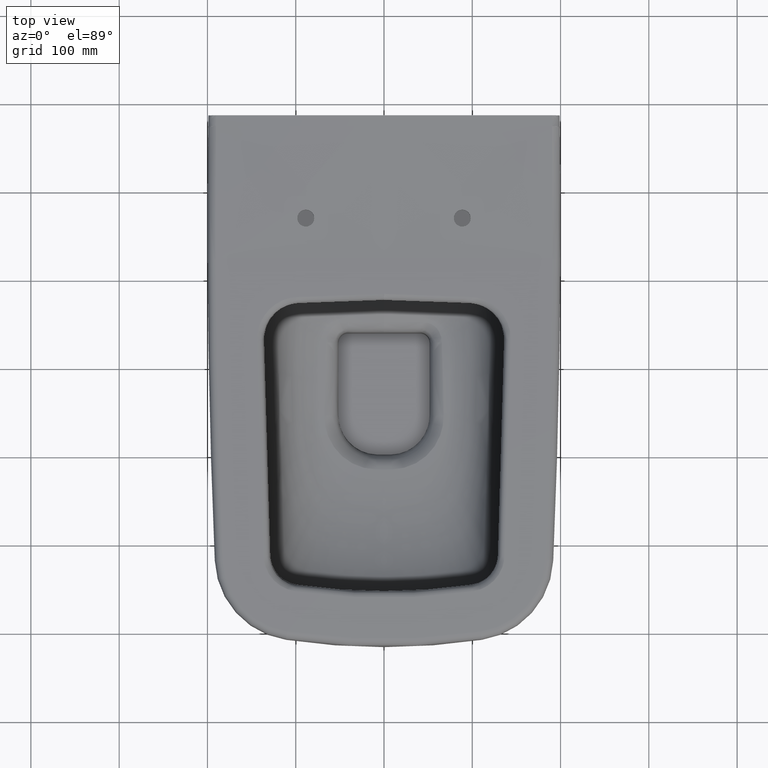
[diagram: clean part render]
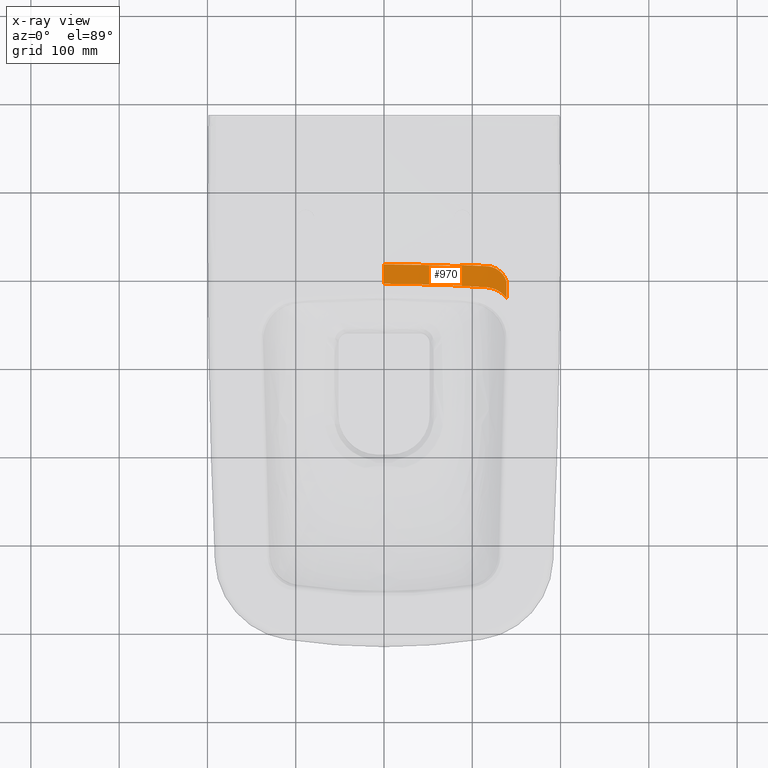
[diagram: x-ray — body ghosted, one internal face saturated and labeled with its STEP entity id]
A machine part, top view, then the same camera in x-ray: the body is ghosted and one INTERNAL B-rep face — a face not visible from any outside direction — is saturated and labeled: STEP entity #970.
In plain terms, the highlighted face is a freeform B-spline surface patch.
Its self-contained STEP definition (entity closure, byte-faithful):
#475=FACE_OUTER_BOUND('',#1289,.T.);
#539=B_SPLINE_SURFACE_WITH_KNOTS('',3,3,((#73798,#73799,#73800,#73801,#73802,
#73803,#73804,#73805,#73806,#73807,#73808,#73809,#73810),(#73811,#73812,
#73813,#73814,#73815,#73816,#73817,#73818,#73819,#73820,#73821,#73822,#73823),
(#73824,#73825,#73826,#73827,#73828,#73829,#73830,#73831,#73832,#73833,
#73834,#73835,#73836),(#73837,#73838,#73839,#73840,#73841,#73842,#73843,
#73844,#73845,#73846,#73847,#73848,#73849)),.UNSPECIFIED.,.F.,.F.,.F.,(4,
4),(4,3,3,3,4),(0.,1.),(0.,0.0795201954493503,0.950882290564406,0.975439942280452,
1.),.UNSPECIFIED.);
#970=ADVANCED_FACE('',(#475),#539,.F.);
#1289=EDGE_LOOP('',(#2519,#2520,#2521,#2522,#2523,#2524,#2525,#2526,#2527,
#2528,#2529,#2530,#2531));
#2519=ORIENTED_EDGE('',*,*,#3653,.F.);
#2520=ORIENTED_EDGE('',*,*,#3658,.F.);
#2521=ORIENTED_EDGE('',*,*,#3657,.T.);
#2522=ORIENTED_EDGE('',*,*,#3656,.T.);
#2523=ORIENTED_EDGE('',*,*,#3655,.T.);
#2524=ORIENTED_EDGE('',*,*,#3682,.T.);
#2525=ORIENTED_EDGE('',*,*,#3683,.F.);
#2526=ORIENTED_EDGE('',*,*,#3684,.F.);
#2527=ORIENTED_EDGE('',*,*,#3385,.T.);
#2528=ORIENTED_EDGE('',*,*,#3685,.T.);
#2529=ORIENTED_EDGE('',*,*,#3647,.T.);
#2530=ORIENTED_EDGE('',*,*,#3484,.F.);
#2531=ORIENTED_EDGE('',*,*,#3468,.F.);
#2857=VERTEX_POINT('',#37587);
#2858=VERTEX_POINT('',#37592);
#2909=VERTEX_POINT('',#45178);
#2910=VERTEX_POINT('',#45185);
#2921=VERTEX_POINT('',#52158);
#3009=VERTEX_POINT('',#72334);
#3012=VERTEX_POINT('',#72379);
#3013=VERTEX_POINT('',#72436);
#3014=VERTEX_POINT('',#72441);
#3015=VERTEX_POINT('',#72446);
#3016=VERTEX_POINT('',#72451);
#3029=VERTEX_POINT('',#72648);
#3034=VERTEX_POINT('',#73771);
#3385=EDGE_CURVE('',#2858,#2857,#3950,.T.);
#3468=EDGE_CURVE('',#2909,#2910,#4018,.T.);
#3484=EDGE_CURVE('',#2910,#2921,#4025,.T.);
#3647=EDGE_CURVE('',#3009,#2921,#4122,.T.);
#3653=EDGE_CURVE('',#3012,#2909,#4128,.T.);
#3655=EDGE_CURVE('',#3014,#3013,#4130,.T.);
#3656=EDGE_CURVE('',#3015,#3014,#4131,.T.);
#3657=EDGE_CURVE('',#3016,#3015,#4132,.T.);
#3658=EDGE_CURVE('',#3016,#3012,#4133,.T.);
#3682=EDGE_CURVE('',#3013,#3029,#4156,.T.);
#3683=EDGE_CURVE('',#3034,#3029,#4157,.T.);
#3684=EDGE_CURVE('',#2858,#3034,#4158,.T.);
#3685=EDGE_CURVE('',#2857,#3009,#4159,.T.);
#3950=B_SPLINE_CURVE_WITH_KNOTS('',3,(#37588,#37589,#37590,#37591),
 .UNSPECIFIED.,.F.,.F.,(4,4),(0.,1.),.UNSPECIFIED.);
#4018=B_SPLINE_CURVE_WITH_KNOTS('',3,(#45179,#45180,#45181,#45182,#45183,
#45184),.UNSPECIFIED.,.F.,.F.,(4,2,4),(0.,0.5,1.),.UNSPECIFIED.);
#4025=B_SPLINE_CURVE_WITH_KNOTS('',3,(#52150,#52151,#52152,#52153,#52154,
#52155,#52156,#52157),.UNSPECIFIED.,.F.,.F.,(4,2,2,4),(0.,0.25,0.500000000000001,
1.),.UNSPECIFIED.);
#4122=B_SPLINE_CURVE_WITH_KNOTS('',3,(#72327,#72328,#72329,#72330,#72331,
#72332,#72333),.UNSPECIFIED.,.F.,.F.,(4,3,4),(0.,0.544623235989819,1.),
 .UNSPECIFIED.);
#4128=B_SPLINE_CURVE_WITH_KNOTS('',3,(#72396,#72397,#72398,#72399,#72400,
#72401,#72402,#72403,#72404,#72405,#72406,#72407,#72408,#72409,#72410,#72411,
#72412,#72413),.UNSPECIFIED.,.F.,.F.,(4,3,2,2,2,2,3,4),(0.,0.115384615384615,
0.376788875537149,0.626339936463389,0.748197371512142,0.875890997392022,
0.884615384615385,1.),.UNSPECIFIED.);
#4130=B_SPLINE_CURVE_WITH_KNOTS('',3,(#72437,#72438,#72439,#72440),
 .UNSPECIFIED.,.F.,.F.,(4,4),(0.,1.),.UNSPECIFIED.);
#4131=B_SPLINE_CURVE_WITH_KNOTS('',3,(#72442,#72443,#72444,#72445),
 .UNSPECIFIED.,.F.,.F.,(4,4),(0.,1.),.UNSPECIFIED.);
#4132=B_SPLINE_CURVE_WITH_KNOTS('',3,(#72447,#72448,#72449,#72450),
 .UNSPECIFIED.,.F.,.F.,(4,4),(0.,1.),.UNSPECIFIED.);
#4133=B_SPLINE_CURVE_WITH_KNOTS('',3,(#72452,#72453,#72454,#72455,#72456,
#72457),.UNSPECIFIED.,.F.,.F.,(4,2,4),(0.,0.5,1.),.UNSPECIFIED.);
#4156=B_SPLINE_CURVE_WITH_KNOTS('',3,(#73763,#73764,#73765,#73766),
 .UNSPECIFIED.,.F.,.F.,(4,4),(0.,1.),.UNSPECIFIED.);
#4157=B_SPLINE_CURVE_WITH_KNOTS('',3,(#73767,#73768,#73769,#73770),
 .UNSPECIFIED.,.F.,.F.,(4,4),(0.,1.),.UNSPECIFIED.);
#4158=B_SPLINE_CURVE_WITH_KNOTS('',3,(#73772,#73773,#73774,#73775,#73776,
#73777,#73778,#73779,#73780,#73781,#73782,#73783,#73784,#73785),
 .UNSPECIFIED.,.F.,.F.,(4,2,2,2,2,2,4),(0.,0.125,0.25,0.375,0.5,0.75,1.),
 .UNSPECIFIED.);
#4159=B_SPLINE_CURVE_WITH_KNOTS('',3,(#73786,#73787,#73788,#73789,#73790,
#73791,#73792,#73793,#73794,#73795,#73796,#73797),.UNSPECIFIED.,.F.,.F.,
(4,2,2,2,2,4),(0.,0.25,0.375,0.5,0.75,1.),.UNSPECIFIED.);
#37587=CARTESIAN_POINT('',(3.05745012640912E-13,-186.514554702741,-91.601619009732));
#37588=CARTESIAN_POINT('',(7.60565818266914E-9,-208.541681056613,-91.6014102561195));
#37589=CARTESIAN_POINT('',(1.08923659929537E-7,-201.199386488007,-91.6014533231968));
#37590=CARTESIAN_POINT('',(-1.48261762725828E-8,-193.857008543113,-91.6015583368934));
#37591=CARTESIAN_POINT('',(-7.35755530344321E-7,-186.514554709675,-91.6018163508785));
#37592=CARTESIAN_POINT('',(9.77147795864402E-15,-208.54168105655,-91.6013996321728));
#45178=CARTESIAN_POINT('',(138.855833224708,-206.384947195497,-78.0539105498396));
#45179=CARTESIAN_POINT('',(138.855831952715,-206.384941360903,-78.0539077672393));
#45180=CARTESIAN_POINT('',(137.574494762444,-201.867269085775,-78.3063652590014));
#45181=CARTESIAN_POINT('',(134.861940697237,-197.734442393895,-78.8382464658453));
#45182=CARTESIAN_POINT('',(127.786082454967,-191.669436855756,-80.1533946114858));
#45183=CARTESIAN_POINT('',(123.406476933826,-189.652256682405,-80.9367099305942));
#45184=CARTESIAN_POINT('',(118.796116428892,-188.852986700068,-81.7086337604499));
#45185=CARTESIAN_POINT('',(118.796194968392,-188.853000315617,-81.708620608272));
#52150=CARTESIAN_POINT('',(118.796221148171,-188.853004854822,-81.7086162270393));
#52151=CARTESIAN_POINT('',(116.095536466212,-188.384792674911,-82.1607988205724));
#52152=CARTESIAN_POINT('',(113.368498253791,-188.407356922035,-82.6012540987553));
#52153=CARTESIAN_POINT('',(107.923952244961,-188.166780107584,-83.4483158475305));
#52154=CARTESIAN_POINT('',(105.200179209202,-188.031334271349,-83.8560125088839));
#52155=CARTESIAN_POINT('',(97.0211644202555,-187.644916892541,-85.0322479153249));
#52156=CARTESIAN_POINT('',(91.5580488764104,-187.417527036438,-85.7539741338108));
#52157=CARTESIAN_POINT('',(86.0819738554707,-187.271517346723,-86.4136334515198));
#52158=CARTESIAN_POINT('',(86.0819738554706,-187.271517346723,-86.4136334515197));
#72327=CARTESIAN_POINT('',(86.0819718777439,-188.745111600823,-86.4133765805592));
#72328=CARTESIAN_POINT('',(86.0819722144861,-188.477593710377,-86.4134229583411));
#72329=CARTESIAN_POINT('',(86.0819725632104,-188.210075819956,-86.4134694730811));
#72330=CARTESIAN_POINT('',(86.0819729241801,-187.942557929559,-86.4135161277839));
#72331=CARTESIAN_POINT('',(86.0819732259983,-187.718877735263,-86.4135551372609));
#72332=CARTESIAN_POINT('',(86.0819735363773,-187.495197540984,-86.4135942445876));
#72333=CARTESIAN_POINT('',(86.0819738554706,-187.271517346723,-86.4136334515197));
#72334=CARTESIAN_POINT('',(86.0819718777439,-188.745111600823,-86.4133765805592));
#72379=CARTESIAN_POINT('',(138.856866862904,-225.157920236243,-78.0534538279173));
#72396=CARTESIAN_POINT('',(138.857150737795,-230.454755802057,-78.0533271602451));
#72397=CARTESIAN_POINT('',(138.85705471766,-228.689143946868,-78.0533696574915));
#72398=CARTESIAN_POINT('',(138.856958697525,-226.923532091679,-78.0534121547379));
#72399=CARTESIAN_POINT('',(138.85686267739,-225.15792023649,-78.0534546519843));
#72400=CARTESIAN_POINT('',(138.85664514343,-221.157920243564,-78.0535509296485));
#72401=CARTESIAN_POINT('',(138.856428630574,-217.15792025057,-78.053646725944));
#72402=CARTESIAN_POINT('',(138.856000763293,-209.339297556893,-78.053836339908));
#72403=CARTESIAN_POINT('',(138.855786200886,-205.52067485641,-78.0539313901294));
#72404=CARTESIAN_POINT('',(138.855458538557,-199.837393413031,-78.0540764957133));
#72405=CARTESIAN_POINT('',(138.855349699854,-197.972734669835,-78.0541246876384));
#72406=CARTESIAN_POINT('',(138.855124076611,-194.154111970083,-78.0542245754494));
#72407=CARTESIAN_POINT('',(138.855007161169,-192.200148013534,-78.0542763286099));
#72408=CARTESIAN_POINT('',(138.854880691557,-190.112683750722,-78.0543323033656));
#72409=CARTESIAN_POINT('',(138.854872589283,-189.979183444353,-78.0543358880408));
#72410=CARTESIAN_POINT('',(138.854864477994,-189.845683137984,-78.0543394742339));
#72411=CARTESIAN_POINT('',(138.854757201925,-188.080071283564,-78.0543869035263));
#72412=CARTESIAN_POINT('',(138.854649925857,-186.314459429145,-78.0544343328186));
#72413=CARTESIAN_POINT('',(138.854542649788,-184.548847574725,-78.054481762111));
#72436=CARTESIAN_POINT('',(113.100595749314,-212.513979386244,-82.6389157685539));
#72437=CARTESIAN_POINT('',(116.282518939281,-212.707678095105,-82.1221443014002));
#72438=CARTESIAN_POINT('',(115.222382856851,-212.642092499024,-82.2956709437139));
#72439=CARTESIAN_POINT('',(114.161569698845,-212.577455804845,-82.4668596283504));
#72440=CARTESIAN_POINT('',(113.100098063221,-212.513769515379,-82.6357066763619));
#72441=CARTESIAN_POINT('',(116.282962545997,-212.707347789153,-82.1247314390714));
#72442=CARTESIAN_POINT('',(116.446492257351,-212.717674219645,-82.0952850845775));
#72443=CARTESIAN_POINT('',(116.391845114722,-212.714192591109,-82.1042429402836));
#72444=CARTESIAN_POINT('',(116.337196170596,-212.710713478515,-82.1131945834203));
#72445=CARTESIAN_POINT('',(116.282545427521,-212.70723688207,-82.1221400134838));
#72446=CARTESIAN_POINT('',(116.44691178445,-212.717674500562,-82.097844576628));
#72447=CARTESIAN_POINT('',(117.006396869737,-212.760111112196,-82.0032760574067));
#72448=CARTESIAN_POINT('',(116.819783055237,-212.745936573704,-82.0340182010249));
#72449=CARTESIAN_POINT('',(116.633148150676,-212.731790940176,-82.0646878834437));
#72450=CARTESIAN_POINT('',(116.446492257351,-212.717674219645,-82.0952850845775));
#72451=CARTESIAN_POINT('',(117.00714484313,-212.755982280409,-82.0056751586943));
#72452=CARTESIAN_POINT('',(117.006802306362,-212.760111454649,-82.0057312328234));
#72453=CARTESIAN_POINT('',(121.333211821695,-213.128699849003,-81.2921869606002));
#72454=CARTESIAN_POINT('',(125.491427012429,-214.415696591906,-80.5644231389278));
#72455=CARTESIAN_POINT('',(133.046344836683,-218.694482233217,-79.1832179723447));
#72456=CARTESIAN_POINT('',(136.326265966494,-221.638838760023,-78.5517394276123));
#72457=CARTESIAN_POINT('',(138.856870865658,-225.157917180048,-78.0534530361256));
#72648=CARTESIAN_POINT('',(98.8683374164885,-211.647458473743,-84.7599174044614));
#73763=CARTESIAN_POINT('',(113.100073215782,-212.514188512027,-82.6357105797863));
#73764=CARTESIAN_POINT('',(107.792228205582,-212.192157586388,-83.4800234792781));
#73765=CARTESIAN_POINT('',(103.044593186879,-211.906284669448,-84.1747698758809));
#73766=CARTESIAN_POINT('',(98.8677901800666,-211.642570508659,-84.7537431566866));
#73767=CARTESIAN_POINT('',(76.4690393658786,-210.286172160349,-87.5025824470905));
#73768=CARTESIAN_POINT('',(83.9568689990493,-210.617280633851,-86.702048201947));
#73769=CARTESIAN_POINT('',(91.4164508575383,-211.18033130452,-85.786613082673));
#73770=CARTESIAN_POINT('',(98.8671861465843,-211.652302296102,-84.7538254803846));
#73771=CARTESIAN_POINT('',(76.4690393658786,-210.286172160349,-87.5025824470905));
#73772=CARTESIAN_POINT('',(4.46066734627931E-9,-208.541680929697,-91.6014102561213));
#73773=CARTESIAN_POINT('',(3.19511771575347,-208.462512003707,-91.6002670289014));
#73774=CARTESIAN_POINT('',(6.38669184565731,-208.611310953883,-91.5777080884974));
#73775=CARTESIAN_POINT('',(12.7692629474587,-208.864916687823,-91.4900182304761));
#73776=CARTESIAN_POINT('',(15.9606414119901,-208.940363303878,-91.4248717286509));
#73777=CARTESIAN_POINT('',(22.344176777847,-208.943167974284,-91.2520631164153));
#73778=CARTESIAN_POINT('',(25.536054954113,-208.891953384198,-91.1444009802248));
#73779=CARTESIAN_POINT('',(31.9172934046106,-208.895221544429,-90.8867417157208));
#73780=CARTESIAN_POINT('',(35.1067088010367,-208.94749057175,-90.7367478678754));
#73781=CARTESIAN_POINT('',(44.6714790959954,-209.227845943686,-90.2234121995413));
#73782=CARTESIAN_POINT('',(51.0372374007635,-209.537875151146,-89.7971432391796));
#73783=CARTESIAN_POINT('',(63.7635612318422,-209.902573831156,-88.7759951788469));
#73784=CARTESIAN_POINT('',(70.1225501103693,-210.005533247281,-88.1810944104189));
#73785=CARTESIAN_POINT('',(76.4690393658786,-210.286172160349,-87.5025824470906));
#73786=CARTESIAN_POINT('',(-1.91806031727886E-7,-186.514565043309,-91.6018163503528));
#73787=CARTESIAN_POINT('',(7.19221517780075,-186.689041143568,-91.599664375009));
#73788=CARTESIAN_POINT('',(14.3872605358754,-186.719445883458,-91.4888785147085));
#73789=CARTESIAN_POINT('',(25.1709661230279,-186.836716125117,-91.161193095915));
#73790=CARTESIAN_POINT('',(28.7649338447676,-186.853462626204,-91.0250314562587));
#73791=CARTESIAN_POINT('',(35.9504210211176,-186.936132526938,-90.699012511781));
#73792=CARTESIAN_POINT('',(39.5414865498955,-187.049083607907,-90.5091752840898));
#73793=CARTESIAN_POINT('',(50.311439882344,-187.337974396384,-89.8592553952512));
#73794=CARTESIAN_POINT('',(57.4842778268677,-187.54316057091,-89.3188856162221));
#73795=CARTESIAN_POINT('',(71.8017570301454,-188.073564617553,-88.0256797314426));
#73796=CARTESIAN_POINT('',(78.9510794766521,-188.313115785585,-87.2724151838169));
#73797=CARTESIAN_POINT('',(86.081971877744,-188.745111600823,-86.4133765805588));
#73798=CARTESIAN_POINT('',(-0.887325584280455,-223.8601596898,-91.6011822142633));
#73799=CARTESIAN_POINT('',(-0.88513001731869,-222.718975686603,-91.6011817805787));
#73800=CARTESIAN_POINT('',(-0.882934450356926,-221.577791683407,-91.6011813468942));
#73801=CARTESIAN_POINT('',(-0.880738883395161,-220.43660768021,-91.6011809132097));
#73802=CARTESIAN_POINT('',(-0.856680418536543,-207.931803355747,-91.6011761610049));
#73803=CARTESIAN_POINT('',(-0.832622057982656,-195.42705143177,-91.6012097006694));
#73804=CARTESIAN_POINT('',(-0.808565688855634,-182.922388887907,-91.6017309418971));
#73805=CARTESIAN_POINT('',(-0.807887706719521,-182.569969211517,-91.6017456320708));
#73806=CARTESIAN_POINT('',(-0.807209724583408,-182.217549535127,-91.6017603222445));
#73807=CARTESIAN_POINT('',(-0.806531742447295,-181.865129858737,-91.6017750124182));
#73808=CARTESIAN_POINT('',(-0.805853693886777,-181.512675654495,-91.6017897040312));
#73809=CARTESIAN_POINT('',(-0.80517564532626,-181.160221450253,-91.6018043956441));
#73810=CARTESIAN_POINT('',(-0.804497596765742,-180.80776724601,-91.6018190872571));
#73811=CARTESIAN_POINT('',(46.4770169848666,-223.607010204679,-91.6411070691549));
#73812=CARTESIAN_POINT('',(46.4792187359886,-222.484171377033,-91.6411066341174));
#73813=CARTESIAN_POINT('',(46.4814204871106,-221.361332549387,-91.64110619908));
#73814=CARTESIAN_POINT('',(46.4836222382326,-220.23849372174,-91.6411057640425));
#73815=CARTESIAN_POINT('',(46.5077484675477,-207.934711169322,-91.6411009970126));
#73816=CARTESIAN_POINT('',(46.5318736505617,-195.630981834853,-91.6411346368279));
#73817=CARTESIAN_POINT('',(46.5560002466422,-183.327341471554,-91.6416573771097));
#73818=CARTESIAN_POINT('',(46.5566802079889,-182.980587215688,-91.6416721095313));
#73819=CARTESIAN_POINT('',(46.5573601693356,-182.633832959822,-91.6416868419529));
#73820=CARTESIAN_POINT('',(46.5580401306822,-182.287078703956,-91.6417015743746));
#73821=CARTESIAN_POINT('',(46.5587201586472,-181.9402904753,-91.6417163082396));
#73822=CARTESIAN_POINT('',(46.5594001866122,-181.593502246644,-91.6417310421046));
#73823=CARTESIAN_POINT('',(46.5600802145772,-181.246714017987,-91.6417457759696));
#73824=CARTESIAN_POINT('',(93.8459462354633,-225.256403173058,-86.9694496512368));
#73825=CARTESIAN_POINT('',(93.847418357042,-224.151906764549,-86.96944936939));
#73826=CARTESIAN_POINT('',(93.8488904786208,-223.047410356041,-86.9694490875433));
#73827=CARTESIAN_POINT('',(93.8503626001995,-221.942913947532,-86.9694488056965));
#73828=CARTESIAN_POINT('',(93.8664937343833,-209.840122963093,-86.9694457172913));
#73829=CARTESIAN_POINT('',(93.8826229356607,-197.737367889665,-86.9694686992107));
#73830=CARTESIAN_POINT('',(93.8987575797918,-185.63467185246,-86.9698173671829));
#73831=CARTESIAN_POINT('',(93.8992123034633,-185.293580822941,-86.9698271937139));
#73832=CARTESIAN_POINT('',(93.8996670271349,-184.952489793421,-86.9698370202449));
#73833=CARTESIAN_POINT('',(93.9001217508064,-184.611398763902,-86.9698468467758));
#73834=CARTESIAN_POINT('',(93.9005765190289,-184.27027431644,-86.9698566742696));
#73835=CARTESIAN_POINT('',(93.9010312872514,-183.929149868977,-86.9698665017633));
#73836=CARTESIAN_POINT('',(93.9014860554739,-183.588025421515,-86.969876329257));
#73837=CARTESIAN_POINT('',(139.671863232111,-228.691927621136,-77.8924690491474));
#73838=CARTESIAN_POINT('',(139.671917670341,-227.605171107656,-77.8924678906398));
#73839=CARTESIAN_POINT('',(139.67197210857,-226.518414594175,-77.8924667321321));
#73840=CARTESIAN_POINT('',(139.6720265468,-225.431658080694,-77.8924655736245));
#73841=CARTESIAN_POINT('',(139.672623067088,-213.523256358144,-77.8924528789923));
#73842=CARTESIAN_POINT('',(139.673220081914,-201.614855823762,-77.8924409290594));
#73843=CARTESIAN_POINT('',(139.673823707804,-189.706457242386,-77.8924384560793));
#73844=CARTESIAN_POINT('',(139.67384071983,-189.370842110058,-77.8924383863832));
#73845=CARTESIAN_POINT('',(139.673857731855,-189.035226977731,-77.892438316687));
#73846=CARTESIAN_POINT('',(139.673874743881,-188.699611845403,-77.8924382469908));
#73847=CARTESIAN_POINT('',(139.673891757574,-188.363963831626,-77.8924381772879));
#73848=CARTESIAN_POINT('',(139.673908771266,-188.028315817849,-77.8924381075849));
#73849=CARTESIAN_POINT('',(139.673925784959,-187.692667804072,-77.8924380378819));